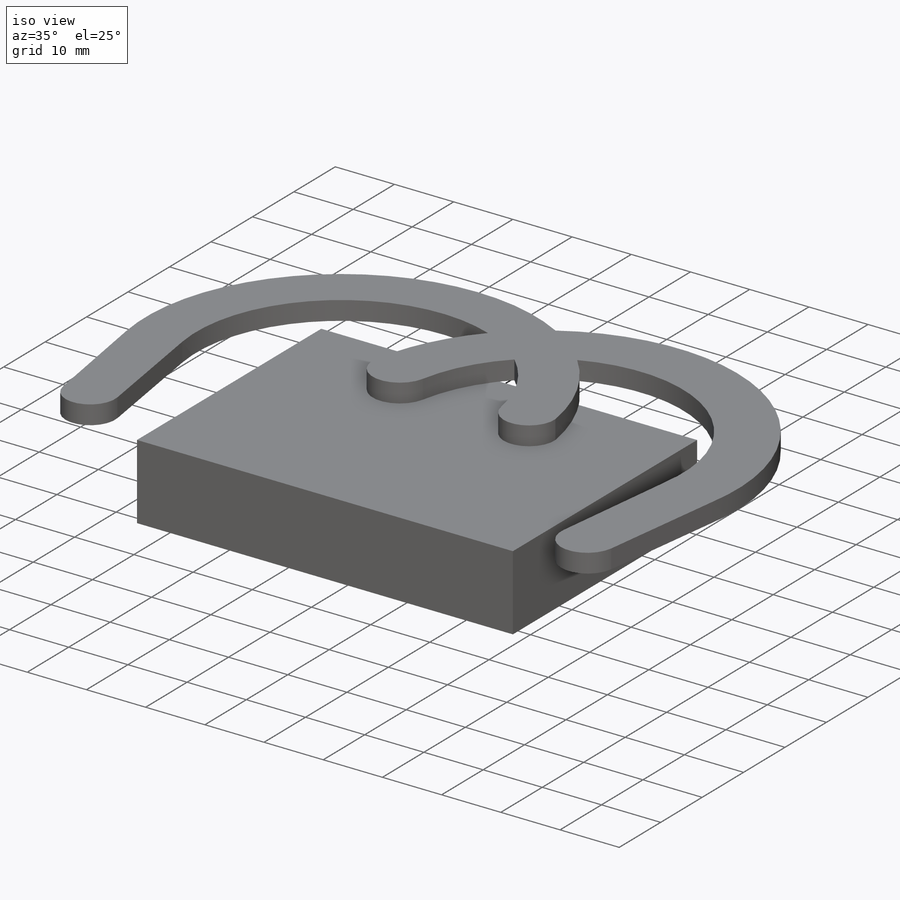
[diagram: iso view]
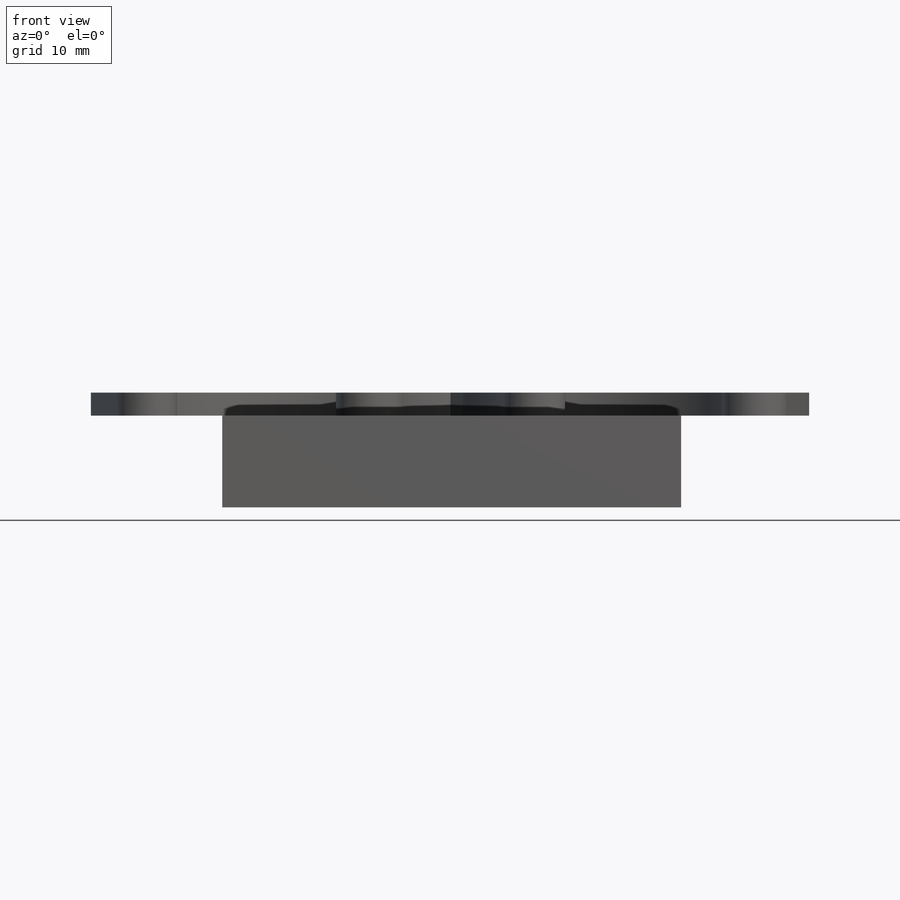
[diagram: front view]
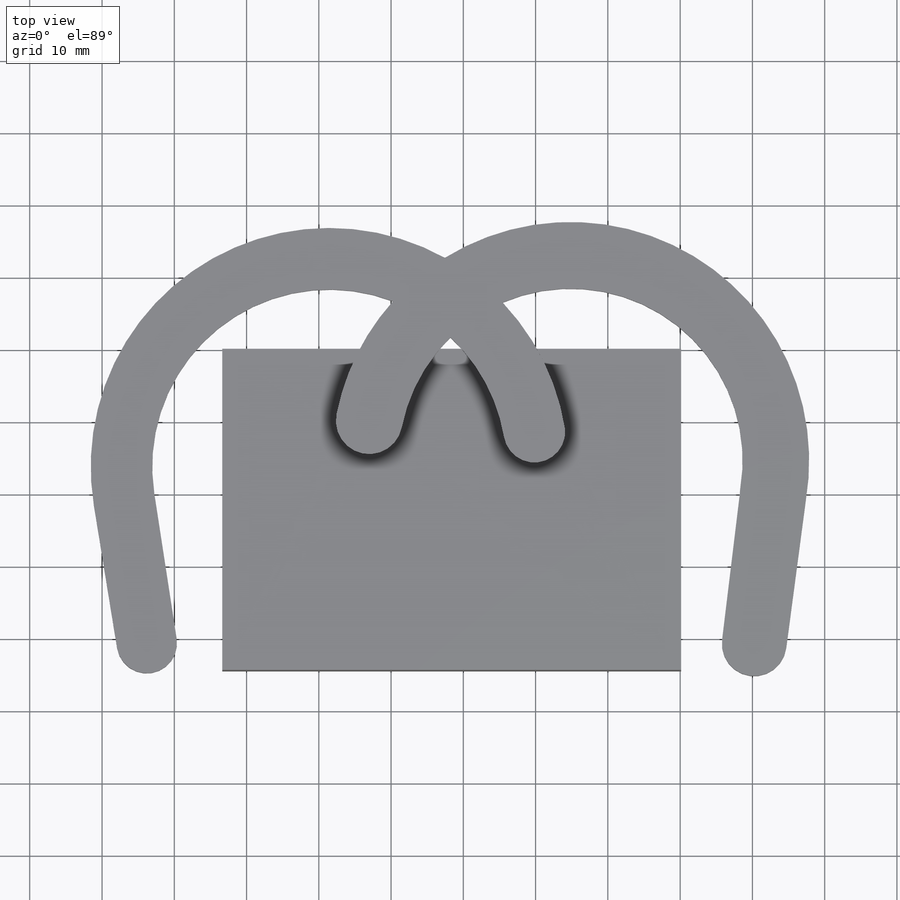
[diagram: top view]
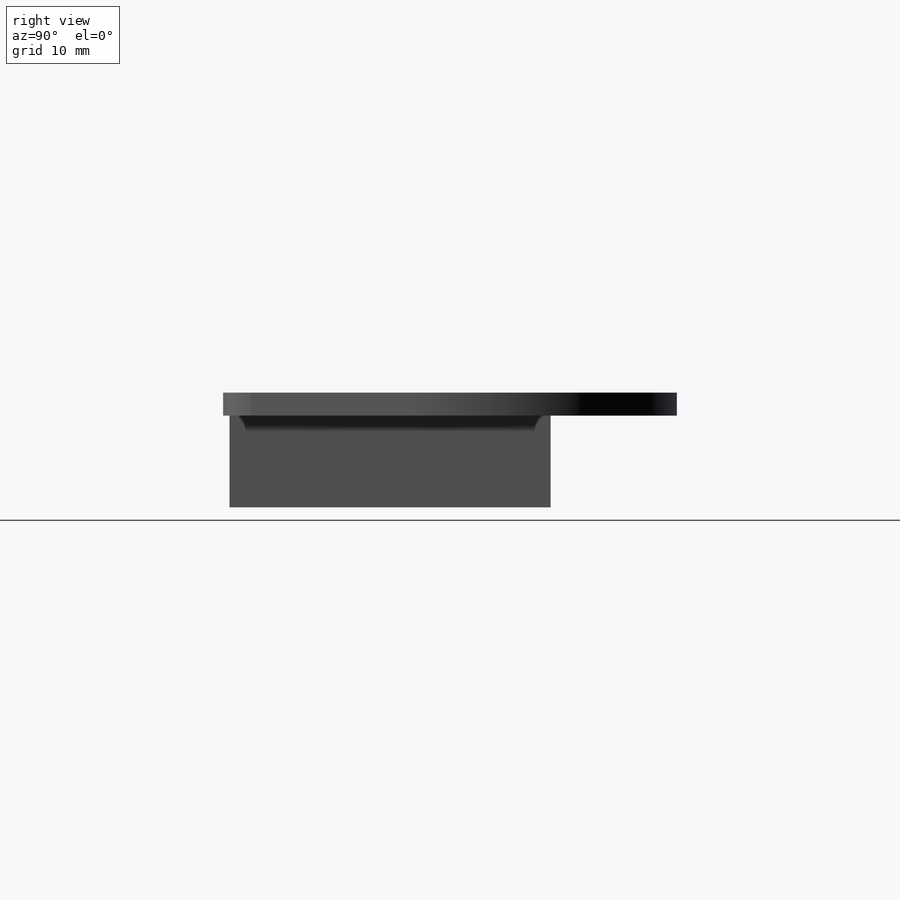
[diagram: right view]
SOLIDWORKS PART (.sldprt)
format: sldprt  version: not decoded by parser v0  size: 230,912 bytes
history: native  units: mm
features: sketch x4, extrude x4, material x1 (+13 scaffold rows collapsed)
feature tree (22):
  scaffold x13  (default folders/planes/origin — collapsed)
  material  "Material <not specified>"
  sketch  "Sketch2"  dims[D1=12.7mm D2=63.5mm]
  extrude  "Boss-Extrude1"  Depth=44.45mm
  sketch  "Sketch3"  dims[D3=33.02mm D1=20.32mm D2=20.32mm D4=12.7mm D5=24.13mm]
  extrude  "Boss-Extrude2"  Depth=3.175mm
  sketch  "Sketch6"  dims[c1.D2=33.02mm c1.D3=33.02mm c1.D1=20.32mm c2.D3=~20.073945mm c2.D4=~14.766773mm]
  extrude  "Boss-Extrude3"  [1 undecoded]
  sketch  "Sketch2<2>"  dims[D1=3.175mm]
  extrude  "Boss-Extrude4"  Depth=3.175mm
decode coverage: 7 of 8 modeling features carry decoded parameters
note: ~ marks probable driven/reference dimensions
note: 1 parameter value undecoded
note: suppression state not decoded; provenance and decode notes live in map.json
